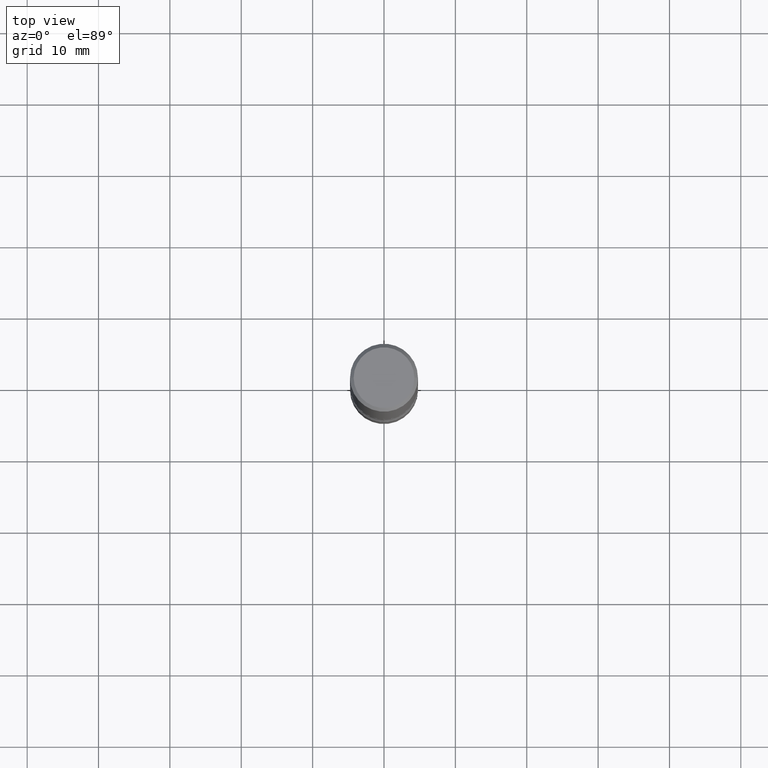
[diagram: clean part render]
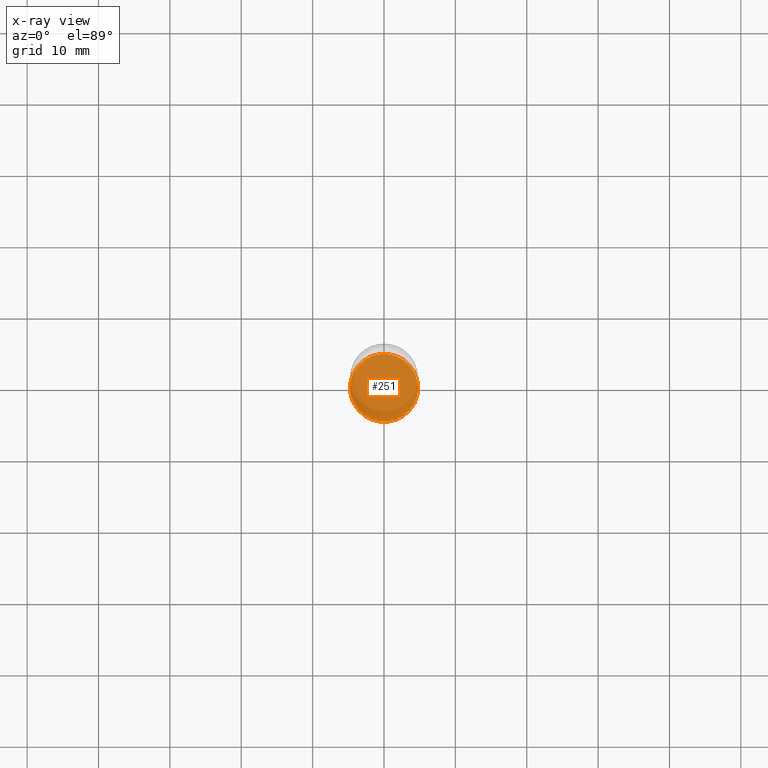
[diagram: x-ray — body ghosted, one internal face saturated and labeled with its STEP entity id]
A machine part, top view, then the same camera in x-ray: the body is ghosted and one INTERNAL B-rep face — a face not visible from any outside direction — is saturated and labeled: STEP entity #251.
In plain terms, the highlighted planar face has unit normal (0, -0, -1).
Its self-contained STEP definition (entity closure, byte-faithful):
#11 = CARTESIAN_POINT ( 'NONE',  ( -0.1875000000000000833, -1.116723556350827469E-14, -3.250000000000000444 ) ) ;
#26 = AXIS2_PLACEMENT_3D ( 'NONE', #177, #351, #524 ) ;
#59 = VERTEX_POINT ( 'NONE', #260 ) ;
#113 = EDGE_CURVE ( 'NONE', #59, #496, #142, .T. ) ;
#142 = CIRCLE ( 'NONE', #26, 0.1875000000000000833 ) ;
#160 = CIRCLE ( 'NONE', #537, 0.1875000000000000833 ) ;
#177 = CARTESIAN_POINT ( 'NONE',  ( 7.947773620101696182E-29, -1.134731435124022600E-14, -3.250000000000000444 ) ) ;
#236 = EDGE_CURVE ( 'NONE', #496, #59, #160, .T. ) ;
#241 = EDGE_LOOP ( 'NONE', ( #246, #417 ) ) ;
#242 = DIRECTION ( 'NONE',  ( -1.000000000000000000, 6.982962677686265922E-15, -4.876176775795935793E-29 ) ) ;
#245 = DIRECTION ( 'NONE',  ( -2.445468806185136597E-29, 3.491481338843145583E-15, 1.000000000000000000 ) ) ;
#246 = ORIENTED_EDGE ( 'NONE', *, *, #113, .T. ) ;
#251 = ADVANCED_FACE ( 'NONE', ( #541 ), #543, .F. ) ;
#255 = CARTESIAN_POINT ( 'NONE',  ( 7.947773620101696182E-29, -1.134731435124022600E-14, -3.250000000000000444 ) ) ;
#260 = CARTESIAN_POINT ( 'NONE',  ( 0.1875000000000000833, -1.265661985330640259E-14, -3.250000000000000444 ) ) ;
#288 = DIRECTION ( 'NONE',  ( 2.438088387897960049E-29, -3.491481338843145188E-15, -1.000000000000000000 ) ) ;
#351 = DIRECTION ( 'NONE',  ( -2.445468806185136597E-29, 3.491481338843145583E-15, 1.000000000000000000 ) ) ;
#376 = DIRECTION ( 'NONE',  ( 1.000000000000000000, -6.982962677686269866E-15, 0.000000000000000000 ) ) ;
#388 = AXIS2_PLACEMENT_3D ( 'NONE', #497, #288, #242 ) ;
#417 = ORIENTED_EDGE ( 'NONE', *, *, #236, .T. ) ;
#496 = VERTEX_POINT ( 'NONE', #11 ) ;
#497 = CARTESIAN_POINT ( 'NONE',  ( 7.947773620101696182E-29, -1.134731435124022600E-14, -3.250000000000000444 ) ) ;
#524 = DIRECTION ( 'NONE',  ( 1.000000000000000000, -6.982962677686269866E-15, 0.000000000000000000 ) ) ;
#537 = AXIS2_PLACEMENT_3D ( 'NONE', #255, #245, #376 ) ;
#541 = FACE_OUTER_BOUND ( 'NONE', #241, .T. ) ;
#543 = PLANE ( 'NONE',  #388 ) ;